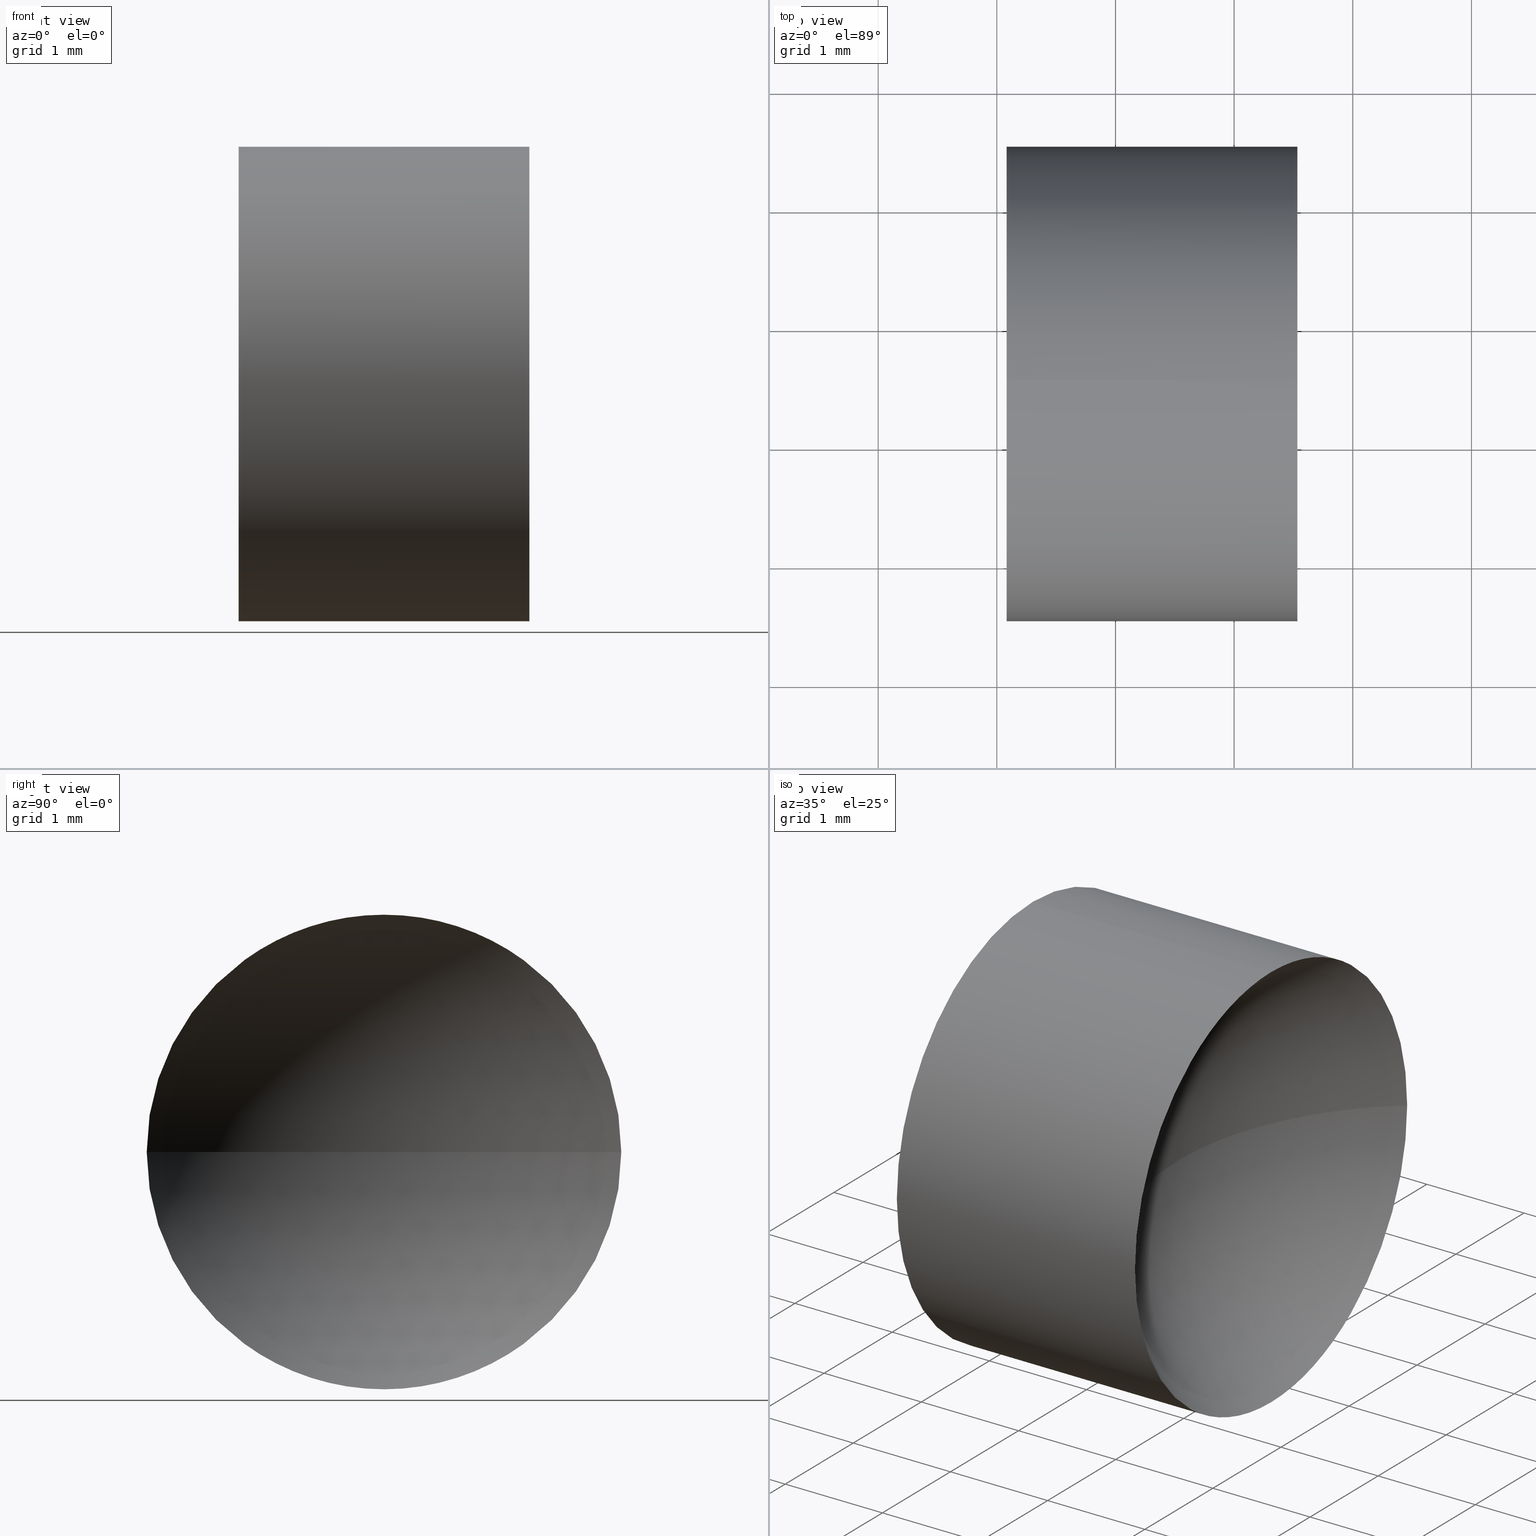
[diagram: canonical four-view strip — front | top / right | iso, engineering-drawing reading convention]
A machine part, canonical four-view strip (front | top / right | iso — engineering-drawing reading convention). The complete STEP part file that produces these views, byte-faithful:
ISO-10303-21;
HEADER;
FILE_DESCRIPTION (( 'STEP AP214' ),
    '1' );
FILE_NAME ('120000.STEP',
    '2019-06-13T06:19:21',
    ( '' ),
    ( '' ),
    'SwSTEP 2.0',
    'SolidWorks 2016',
    '' );
FILE_SCHEMA (( 'AUTOMOTIVE_DESIGN' ));
ENDSEC;

DATA;
#1 = CYLINDRICAL_SURFACE ( 'NONE', #16, 2.000000000000000900 ) ;
#2 = CARTESIAN_POINT ( 'NONE',  ( 13.53286323056900100, 8.522260287298740500, 2.449293598294707900E-016 ) ) ;
#3 = EDGE_CURVE ( 'NONE', #4, #52, #174, .T. ) ;
#4 = VERTEX_POINT ( 'NONE', #166 ) ;
#5 = UNCERTAINTY_MEASURE_WITH_UNIT (LENGTH_MEASURE( 1.000000000000000100E-005 ), #141, 'distance_accuracy_value', 'NONE');
#6 = PLANE ( 'NONE',  #143 ) ;
#7 = EDGE_CURVE ( 'NONE', #116, #88, #74, .T. ) ;
#8 = ORIENTED_EDGE ( 'NONE', *, *, #17, .T. ) ;
#9 = CARTESIAN_POINT ( 'NONE',  ( 13.53286323056900100, 6.522260287298739600, 0.0000000000000000000 ) ) ;
#10 = ADVANCED_FACE ( 'NONE', ( #103 ), #34, .T. ) ;
#11 = APPLICATION_CONTEXT ( 'automotive_design' ) ;
#12 = EDGE_LOOP ( 'NONE', ( #14, #97, #159, #161, #23 ) ) ;
#13 = STYLED_ITEM ( 'NONE', ( #96 ), #75 ) ;
#14 = ORIENTED_EDGE ( 'NONE', *, *, #77, .T. ) ;
#15 = CLOSED_SHELL ( 'NONE', ( #10, #137, #140, #110, #186 ) ) ;
#16 = AXIS2_PLACEMENT_3D ( 'NONE', #31, #144, #76 ) ;
#17 = EDGE_CURVE ( 'NONE', #52, #92, #106, .T. ) ;
#18 = FILL_AREA_STYLE_COLOUR ( '', #107 ) ;
#19 = DIRECTION ( 'NONE',  ( 0.0000000000000000000, -1.000000000000000000, 0.0000000000000000000 ) ) ;
#20 = ORIENTED_EDGE ( 'NONE', *, *, #77, .F. ) ;
#21 = DIRECTION ( 'NONE',  ( -1.000000000000000000, -0.0000000000000000000, -0.0000000000000000000 ) ) ;
#22 = MECHANICAL_DESIGN_GEOMETRIC_PRESENTATION_REPRESENTATION (  '', ( #13 ), #44 ) ;
#23 = ORIENTED_EDGE ( 'NONE', *, *, #183, .T. ) ;
#24 = DIRECTION ( 'NONE',  ( -1.000000000000000000, -0.0000000000000000000, -0.0000000000000000000 ) ) ;
#25 = AXIS2_PLACEMENT_3D ( 'NONE', #127, #30, #43 ) ;
#26 = DIRECTION ( 'NONE',  ( 1.000000000000000000, 0.0000000000000000000, 0.0000000000000000000 ) ) ;
#27 = FILL_AREA_STYLE ('',( #109 ) ) ;
#28 = CIRCLE ( 'NONE', #83, 2.000000000000000900 ) ;
#29 = VECTOR ( 'NONE', #49, 1000.000000000000000 ) ;
#30 = DIRECTION ( 'NONE',  ( 0.0000000000000000000, -1.224646799147353200E-016, 1.000000000000000000 ) ) ;
#31 = CARTESIAN_POINT ( 'NONE',  ( 10.61246527853420600, 6.522260287298739600, 0.0000000000000000000 ) ) ;
#32 = DIRECTION ( 'NONE',  ( 0.0000000000000000000, -1.000000000000000000, 0.0000000000000000000 ) ) ;
#33 = AXIS2_PLACEMENT_3D ( 'NONE', #130, #179, #19 ) ;
#34 = CYLINDRICAL_SURFACE ( 'NONE', #118, 2.000000000000000900 ) ;
#35 = PRESENTATION_LAYER_ASSIGNMENT (  '', '', ( #13 ) ) ;
#36 = CARTESIAN_POINT ( 'NONE',  ( 11.08286323056900400, 6.522260287298739600, -2.000000000000000900 ) ) ;
#37 = CARTESIAN_POINT ( 'NONE',  ( 10.61246527853420600, 6.522260287298739600, 0.0000000000000000000 ) ) ;
#38 = SURFACE_STYLE_FILL_AREA ( #64 ) ;
#39 = CARTESIAN_POINT ( 'NONE',  ( 0.0000000000000000000, 0.0000000000000000000, 0.0000000000000000000 ) ) ;
#40 = AXIS2_PLACEMENT_3D ( 'NONE', #152, #151, #168 ) ;
#41 = EDGE_LOOP ( 'NONE', ( #20, #85, #150, #142 ) ) ;
#42 = APPLICATION_CONTEXT ( 'automotive_design' ) ;
#43 = DIRECTION ( 'NONE',  ( 0.0000000000000000000, -1.000000000000000000, -1.224646799147353500E-016 ) ) ;
#44 =( GEOMETRIC_REPRESENTATION_CONTEXT ( 3 ) GLOBAL_UNCERTAINTY_ASSIGNED_CONTEXT ( ( #5 ) ) GLOBAL_UNIT_ASSIGNED_CONTEXT ( ( #141, #185, #59 ) ) REPRESENTATION_CONTEXT ( 'NONE', 'WORKASPACE' ) );
#45 = CARTESIAN_POINT ( 'NONE',  ( 11.08286323056900400, 6.522260287298739600, 2.000000000000000900 ) ) ;
#46 = ORIENTED_EDGE ( 'NONE', *, *, #7, .F. ) ;
#47 = CARTESIAN_POINT ( 'NONE',  ( 10.61246527853420600, 6.522260287298739600, 2.000000000000000900 ) ) ;
#48 = DIRECTION ( 'NONE',  ( 0.0000000000000000000, 0.0000000000000000000, 1.000000000000000000 ) ) ;
#49 = DIRECTION ( 'NONE',  ( -1.000000000000000000, -0.0000000000000000000, -0.0000000000000000000 ) ) ;
#50 = DIRECTION ( 'NONE',  ( 1.000000000000000000, 0.0000000000000000000, 0.0000000000000000000 ) ) ;
#51 = PRODUCT_DEFINITION_CONTEXT ( 'detailed design', #11, 'design' ) ;
#52 = VERTEX_POINT ( 'NONE', #36 ) ;
#53 = AXIS2_PLACEMENT_3D ( 'NONE', #81, #55, #54 ) ;
#54 = DIRECTION ( 'NONE',  ( 0.0000000000000000000, 0.0000000000000000000, 1.000000000000000000 ) ) ;
#55 = DIRECTION ( 'NONE',  ( -1.000000000000000000, -0.0000000000000000000, -0.0000000000000000000 ) ) ;
#56 = DIRECTION ( 'NONE',  ( 0.0000000000000000000, 0.0000000000000000000, 1.000000000000000000 ) ) ;
#57 = MECHANICAL_DESIGN_GEOMETRIC_PRESENTATION_REPRESENTATION (  '', ( #171 ), #182 ) ;
#58 = APPLICATION_PROTOCOL_DEFINITION ( 'draft international standard', 'automotive_design', 1998, #11 ) ;
#59 =( NAMED_UNIT ( * ) SI_UNIT ( $, .STERADIAN. ) SOLID_ANGLE_UNIT ( ) );
#60 = CIRCLE ( 'NONE', #25, 2.580263157894739900 ) ;
#61 =( NAMED_UNIT ( * ) PLANE_ANGLE_UNIT ( ) SI_UNIT ( $, .RADIAN. ) );
#62 = EDGE_CURVE ( 'NONE', #4, #116, #95, .T. ) ;
#63 = CARTESIAN_POINT ( 'NONE',  ( 13.53286323056900100, 6.522260287298739600, 2.000000000000000900 ) ) ;
#64 = FILL_AREA_STYLE ('',( #18 ) ) ;
#65 =( NAMED_UNIT ( * ) SI_UNIT ( $, .STERADIAN. ) SOLID_ANGLE_UNIT ( ) );
#66 = VECTOR ( 'NONE', #146, 1000.000000000000000 ) ;
#67 = CARTESIAN_POINT ( 'NONE',  ( 13.53286323056900100, 6.522260287298739600, 0.0000000000000000000 ) ) ;
#68 = EDGE_CURVE ( 'NONE', #163, #134, #60, .T. ) ;
#69 = CIRCLE ( 'NONE', #100, 2.000000000000000900 ) ;
#70 = FACE_OUTER_BOUND ( 'NONE', #111, .T. ) ;
#71 = CARTESIAN_POINT ( 'NONE',  ( 13.53286323056900100, 6.522260287298739600, 0.0000000000000000000 ) ) ;
#72 = DIRECTION ( 'NONE',  ( -1.000000000000000000, -0.0000000000000000000, -0.0000000000000000000 ) ) ;
#73 = AXIS2_PLACEMENT_3D ( 'NONE', #9, #24, #136 ) ;
#74 = CIRCLE ( 'NONE', #73, 2.000000000000000900 ) ;
#75 = ADVANCED_BREP_SHAPE_REPRESENTATION ( '120000', ( #173, #153 ), #108 ) ;
#76 = DIRECTION ( 'NONE',  ( 0.0000000000000000000, 0.0000000000000000000, 1.000000000000000000 ) ) ;
#77 = EDGE_CURVE ( 'NONE', #163, #4, #184, .T. ) ;
#78 = SPHERICAL_SURFACE ( 'NONE', #157, 2.580263157894739900 ) ;
#79 = CARTESIAN_POINT ( 'NONE',  ( 11.08286323056900400, 6.522260287298739600, 0.0000000000000000000 ) ) ;
#80 = ORIENTED_EDGE ( 'NONE', *, *, #7, .T. ) ;
#81 = CARTESIAN_POINT ( 'NONE',  ( 13.53286323056900100, 6.522260287298739600, 0.0000000000000000000 ) ) ;
#82 = SURFACE_SIDE_STYLE ('',( #132 ) ) ;
#83 = AXIS2_PLACEMENT_3D ( 'NONE', #67, #164, #148 ) ;
#84 = EDGE_CURVE ( 'NONE', #116, #134, #99, .T. ) ;
#85 = ORIENTED_EDGE ( 'NONE', *, *, #68, .T. ) ;
#86 = CARTESIAN_POINT ( 'NONE',  ( 13.53286323056900100, 4.522260287298738700, 0.0000000000000000000 ) ) ;
#87 = PRESENTATION_STYLE_ASSIGNMENT (( #115 ) ) ;
#88 = VERTEX_POINT ( 'NONE', #63 ) ;
#89 = ORIENTED_EDGE ( 'NONE', *, *, #3, .F. ) ;
#90 = DIRECTION ( 'NONE',  ( -1.000000000000000000, 0.0000000000000000000, 0.0000000000000000000 ) ) ;
#91 = DIRECTION ( 'NONE',  ( 0.0000000000000000000, 0.0000000000000000000, 1.000000000000000000 ) ) ;
#92 = VERTEX_POINT ( 'NONE', #45 ) ;
#93 = PRESENTATION_LAYER_ASSIGNMENT (  '', '', ( #171 ) ) ;
#94 = SHAPE_DEFINITION_REPRESENTATION ( #112, #75 ) ;
#95 = CIRCLE ( 'NONE', #149, 2.000000000000000900 ) ;
#96 = PRESENTATION_STYLE_ASSIGNMENT (( #125 ) ) ;
#97 = ORIENTED_EDGE ( 'NONE', *, *, #3, .T. ) ;
#98 = DIRECTION ( 'NONE',  ( 0.0000000000000000000, 0.0000000000000000000, 1.000000000000000000 ) ) ;
#99 = CIRCLE ( 'NONE', #128, 2.580263157894739900 ) ;
#100 = AXIS2_PLACEMENT_3D ( 'NONE', #79, #21, #181 ) ;
#101 = FACE_OUTER_BOUND ( 'NONE', #165, .T. ) ;
#102 = CARTESIAN_POINT ( 'NONE',  ( 15.16312638846374100, 6.522260287298739600, 0.0000000000000000000 ) ) ;
#103 = FACE_OUTER_BOUND ( 'NONE', #12, .T. ) ;
#104 = UNCERTAINTY_MEASURE_WITH_UNIT (LENGTH_MEASURE( 1.000000000000000100E-005 ), #145, 'distance_accuracy_value', 'NONE');
#105 = DIRECTION ( 'NONE',  ( 0.0000000000000000000, 0.0000000000000000000, -1.000000000000000000 ) ) ;
#106 = CIRCLE ( 'NONE', #40, 2.000000000000000900 ) ;
#107 = COLOUR_RGB ( '',1.000000000000000000, 1.000000000000000000, 1.000000000000000000 ) ;
#108 =( GEOMETRIC_REPRESENTATION_CONTEXT ( 3 ) GLOBAL_UNCERTAINTY_ASSIGNED_CONTEXT ( ( #104 ) ) GLOBAL_UNIT_ASSIGNED_CONTEXT ( ( #145, #131, #65 ) ) REPRESENTATION_CONTEXT ( 'NONE', 'WORKASPACE' ) );
#109 = FILL_AREA_STYLE_COLOUR ( '', #135 ) ;
#110 = ADVANCED_FACE ( 'NONE', ( #70 ), #1, .T. ) ;
#111 = EDGE_LOOP ( 'NONE', ( #89, #120, #80, #155, #156 ) ) ;
#112 = PRODUCT_DEFINITION_SHAPE ( 'NONE', 'NONE',  #138 ) ;
#113 = SPHERICAL_SURFACE ( 'NONE', #33, 2.580263157894739900 ) ;
#114 = CARTESIAN_POINT ( 'NONE',  ( 12.58286323056900200, 6.522260287298739600, 0.0000000000000000000 ) ) ;
#115 = SURFACE_STYLE_USAGE ( .BOTH. , #160 ) ;
#116 = VERTEX_POINT ( 'NONE', #86 ) ;
#117 = CARTESIAN_POINT ( 'NONE',  ( 10.61246527853420600, 6.522260287298739600, -2.000000000000000900 ) ) ;
#118 = AXIS2_PLACEMENT_3D ( 'NONE', #37, #72, #56 ) ;
#119 = CARTESIAN_POINT ( 'NONE',  ( 11.08286323056900400, 6.522260287298739600, 0.0000000000000000000 ) ) ;
#120 = ORIENTED_EDGE ( 'NONE', *, *, #62, .T. ) ;
#121 = UNCERTAINTY_MEASURE_WITH_UNIT (LENGTH_MEASURE( 1.000000000000000100E-005 ), #178, 'distance_accuracy_value', 'NONE');
#122 = ORIENTED_EDGE ( 'NONE', *, *, #183, .F. ) ;
#123 = APPLICATION_PROTOCOL_DEFINITION ( 'draft international standard', 'automotive_design', 1998, #42 ) ;
#124 = ORIENTED_EDGE ( 'NONE', *, *, #68, .F. ) ;
#125 = SURFACE_STYLE_USAGE ( .BOTH. , #82 ) ;
#126 = PRODUCT ( '120000', '120000', '', ( #139 ) ) ;
#127 = CARTESIAN_POINT ( 'NONE',  ( 15.16312638846374100, 6.522260287298739600, 0.0000000000000000000 ) ) ;
#128 = AXIS2_PLACEMENT_3D ( 'NONE', #129, #158, #90 ) ;
#129 = CARTESIAN_POINT ( 'NONE',  ( 15.16312638846374100, 6.522260287298739600, 0.0000000000000000000 ) ) ;
#130 = CARTESIAN_POINT ( 'NONE',  ( 15.16312638846374100, 6.522260287298739600, 0.0000000000000000000 ) ) ;
#131 =( NAMED_UNIT ( * ) PLANE_ANGLE_UNIT ( ) SI_UNIT ( $, .RADIAN. ) );
#132 = SURFACE_STYLE_FILL_AREA ( #27 ) ;
#133 = ORIENTED_EDGE ( 'NONE', *, *, #177, .T. ) ;
#134 = VERTEX_POINT ( 'NONE', #114 ) ;
#135 = COLOUR_RGB ( '',1.000000000000000000, 1.000000000000000000, 1.000000000000000000 ) ;
#136 = DIRECTION ( 'NONE',  ( 0.0000000000000000000, 0.0000000000000000000, 1.000000000000000000 ) ) ;
#137 = ADVANCED_FACE ( 'NONE', ( #147 ), #113, .F. ) ;
#138 = PRODUCT_DEFINITION ( 'δ֪', '', #162, #51 ) ;
#139 = PRODUCT_CONTEXT ( 'NONE', #42, 'mechanical' ) ;
#140 = ADVANCED_FACE ( 'NONE', ( #154 ), #78, .F. ) ;
#141 =( LENGTH_UNIT ( ) NAMED_UNIT ( * ) SI_UNIT ( .MILLI., .METRE. ) );
#142 = ORIENTED_EDGE ( 'NONE', *, *, #62, .F. ) ;
#143 = AXIS2_PLACEMENT_3D ( 'NONE', #119, #50, #105 ) ;
#144 = DIRECTION ( 'NONE',  ( -1.000000000000000000, -0.0000000000000000000, -0.0000000000000000000 ) ) ;
#145 =( LENGTH_UNIT ( ) NAMED_UNIT ( * ) SI_UNIT ( .MILLI., .METRE. ) );
#146 = DIRECTION ( 'NONE',  ( -1.000000000000000000, -0.0000000000000000000, -0.0000000000000000000 ) ) ;
#147 = FACE_OUTER_BOUND ( 'NONE', #41, .T. ) ;
#148 = DIRECTION ( 'NONE',  ( 0.0000000000000000000, 0.0000000000000000000, 1.000000000000000000 ) ) ;
#149 = AXIS2_PLACEMENT_3D ( 'NONE', #71, #167, #48 ) ;
#150 = ORIENTED_EDGE ( 'NONE', *, *, #84, .F. ) ;
#151 = DIRECTION ( 'NONE',  ( -1.000000000000000000, -0.0000000000000000000, -0.0000000000000000000 ) ) ;
#152 = CARTESIAN_POINT ( 'NONE',  ( 11.08286323056900400, 6.522260287298739600, 0.0000000000000000000 ) ) ;
#153 = AXIS2_PLACEMENT_3D ( 'NONE', #39, #98, #26 ) ;
#154 = FACE_OUTER_BOUND ( 'NONE', #170, .T. ) ;
#155 = ORIENTED_EDGE ( 'NONE', *, *, #172, .T. ) ;
#156 = ORIENTED_EDGE ( 'NONE', *, *, #17, .F. ) ;
#157 = AXIS2_PLACEMENT_3D ( 'NONE', #102, #91, #32 ) ;
#158 = DIRECTION ( 'NONE',  ( 0.0000000000000000000, 0.0000000000000000000, -1.000000000000000000 ) ) ;
#159 = ORIENTED_EDGE ( 'NONE', *, *, #177, .F. ) ;
#160 = SURFACE_SIDE_STYLE ('',( #38 ) ) ;
#161 = ORIENTED_EDGE ( 'NONE', *, *, #172, .F. ) ;
#162 = PRODUCT_DEFINITION_FORMATION_WITH_SPECIFIED_SOURCE ( '�κ�', '', #126, .NOT_KNOWN. ) ;
#163 = VERTEX_POINT ( 'NONE', #2 ) ;
#164 = DIRECTION ( 'NONE',  ( -1.000000000000000000, -0.0000000000000000000, -0.0000000000000000000 ) ) ;
#165 = EDGE_LOOP ( 'NONE', ( #133, #8 ) ) ;
#166 = CARTESIAN_POINT ( 'NONE',  ( 13.53286323056900100, 6.522260287298739600, -2.000000000000000900 ) ) ;
#167 = DIRECTION ( 'NONE',  ( -1.000000000000000000, -0.0000000000000000000, -0.0000000000000000000 ) ) ;
#168 = DIRECTION ( 'NONE',  ( 0.0000000000000000000, 0.0000000000000000000, 1.000000000000000000 ) ) ;
#169 =( NAMED_UNIT ( * ) SI_UNIT ( $, .STERADIAN. ) SOLID_ANGLE_UNIT ( ) );
#170 = EDGE_LOOP ( 'NONE', ( #124, #122, #46, #175 ) ) ;
#171 = STYLED_ITEM ( 'NONE', ( #87 ), #173 ) ;
#172 = EDGE_CURVE ( 'NONE', #88, #92, #180, .T. ) ;
#173 = MANIFOLD_SOLID_BREP ( '��ת1', #15 ) ;
#174 = LINE ( 'NONE', #117, #29 ) ;
#175 = ORIENTED_EDGE ( 'NONE', *, *, #84, .T. ) ;
#176 = PRODUCT_RELATED_PRODUCT_CATEGORY ( 'part', '', ( #126 ) ) ;
#177 = EDGE_CURVE ( 'NONE', #92, #52, #69, .T. ) ;
#178 =( LENGTH_UNIT ( ) NAMED_UNIT ( * ) SI_UNIT ( .MILLI., .METRE. ) );
#179 = DIRECTION ( 'NONE',  ( 0.0000000000000000000, 0.0000000000000000000, 1.000000000000000000 ) ) ;
#180 = LINE ( 'NONE', #47, #66 ) ;
#181 = DIRECTION ( 'NONE',  ( 0.0000000000000000000, 0.0000000000000000000, 1.000000000000000000 ) ) ;
#182 =( GEOMETRIC_REPRESENTATION_CONTEXT ( 3 ) GLOBAL_UNCERTAINTY_ASSIGNED_CONTEXT ( ( #121 ) ) GLOBAL_UNIT_ASSIGNED_CONTEXT ( ( #178, #61, #169 ) ) REPRESENTATION_CONTEXT ( 'NONE', 'WORKASPACE' ) );
#183 = EDGE_CURVE ( 'NONE', #88, #163, #28, .T. ) ;
#184 = CIRCLE ( 'NONE', #53, 2.000000000000000900 ) ;
#185 =( NAMED_UNIT ( * ) PLANE_ANGLE_UNIT ( ) SI_UNIT ( $, .RADIAN. ) );
#186 = ADVANCED_FACE ( 'NONE', ( #101 ), #6, .F. ) ;
ENDSEC;
END-ISO-10303-21;
